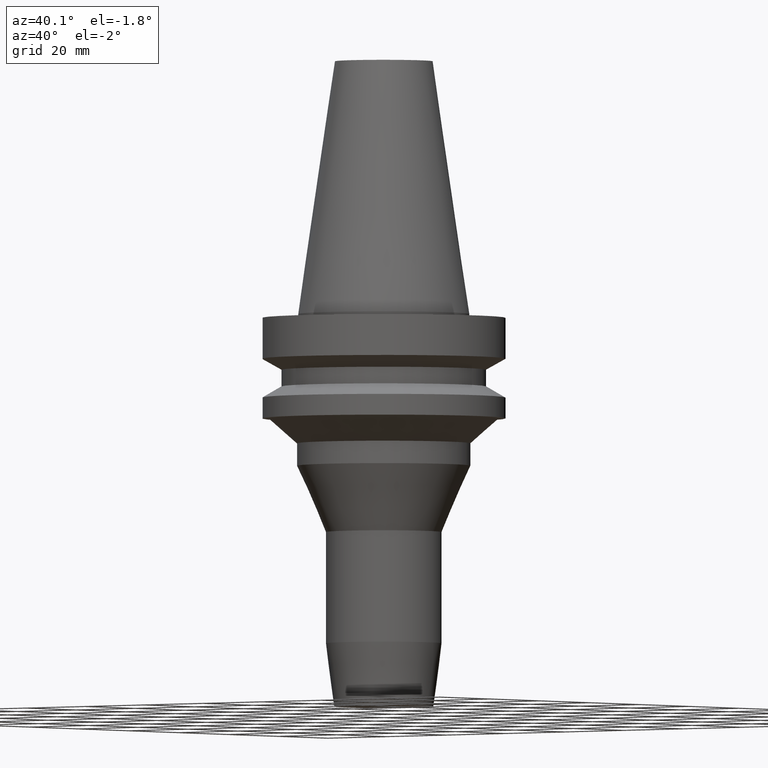
[diagram: clean part render]
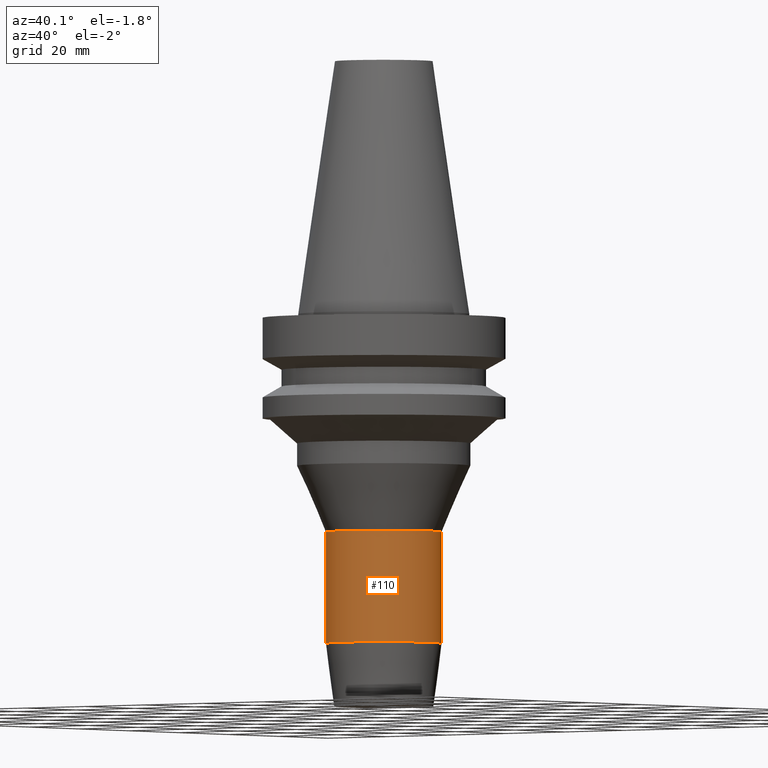
[diagram: same view with one face highlighted and labeled with its STEP entity id]
A machine part, auxiliary view. The second image highlights one B-rep face of the part: STEP entity #110.
In plain terms, the highlighted cylindrical surface (bore or boss wall) has radius 15 mm, axis along (0, -0, -1).
Its self-contained STEP definition (entity closure, byte-faithful):
#93=EDGE_CURVE('Unnamed[1]',#213,#213,#214,.T.);
#110=ADVANCED_FACE('Unnamed[1]',(#238,#239),#240,.T.);
#115=EDGE_CURVE('Unnamed[1]',#247,#247,#248,.T.);
#213=VERTEX_POINT('',#360);
#214=CIRCLE('',#361,15.0000000000028);
#238=FACE_BOUND('',#392,.T.);
#239=FACE_BOUND('',#393,.T.);
#240=CYLINDRICAL_SURFACE('',#394,15.0000000000008);
#247=VERTEX_POINT('',#403);
#248=CIRCLE('',#404,14.9999999999988);
#360=CARTESIAN_POINT('',(3.45482046069532E-015,15.0000000000029,-56.4214998659319));
#361=AXIS2_PLACEMENT_3D('',#511,#512,#513);
#392=EDGE_LOOP('',(#538));
#393=EDGE_LOOP('',(#539));
#394=AXIS2_PLACEMENT_3D('',#540,#541,#542);
#403=CARTESIAN_POINT('',(5.21907267378275E-015,14.9999999999988,-85.2339250372674));
#404=AXIS2_PLACEMENT_3D('',#549,#550,#551);
#511=CARTESIAN_POINT('',(3.45482046069532E-015,7.42001045707279E-014,-56.4214998659319));
#512=DIRECTION('',(6.12323399573677E-017,-2.41671098804306E-017,-1.0));
#513=DIRECTION('',(-3.34734404277984E-033,1.0,-2.41671098804306E-017));
#538=ORIENTED_EDGE('',*,*,#115,.F.);
#539=ORIENTED_EDGE('',*,*,#93,.T.);
#540=CARTESIAN_POINT('',(4.33694656723903E-015,7.38519480482099E-014,-70.8277124515997));
#541=DIRECTION('',(6.12323399573677E-017,-2.41671098804339E-017,-1.0));
#542=DIRECTION('',(-3.3473440427803E-033,1.0,-2.41671098804339E-017));
#549=CARTESIAN_POINT('',(5.21907267378275E-015,7.35037915256919E-014,-85.2339250372674));
#550=DIRECTION('',(6.12323399573676E-017,-2.41671098804372E-017,-1.0));
#551=DIRECTION('',(-3.34734404279271E-033,1.0,-2.41671098804372E-017));